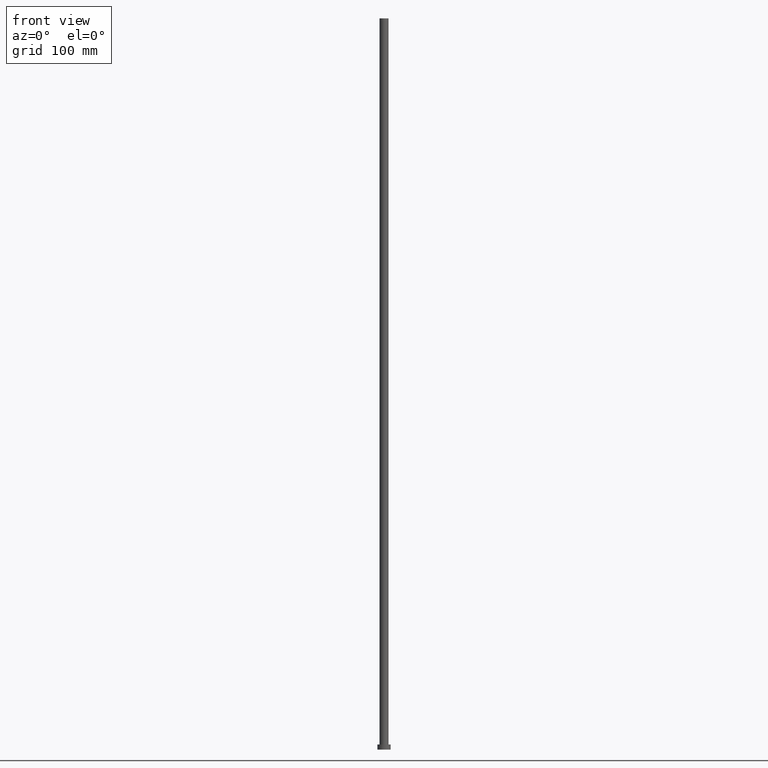
[diagram: clean part render]
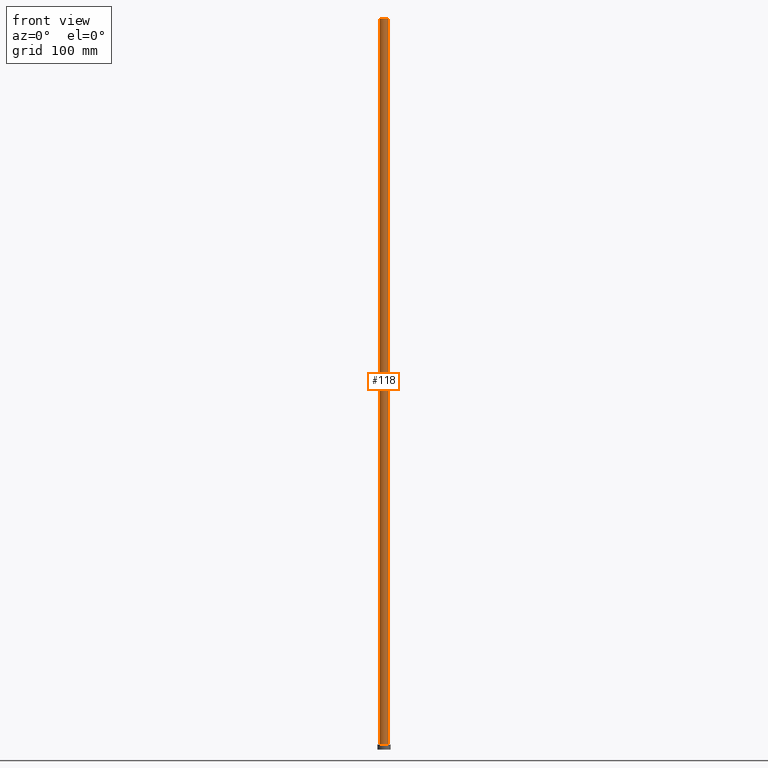
[diagram: same view with one face highlighted and labeled with its STEP entity id]
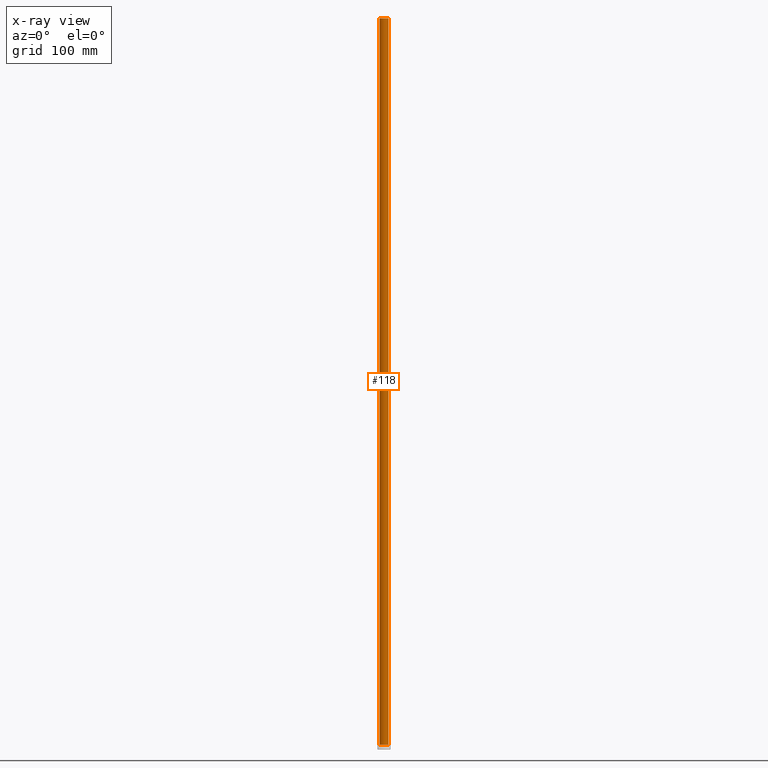
[diagram: x-ray of the same camera — body ghosted, the highlighted face saturated]
A machine part, front view. The second image highlights one B-rep face of the part: STEP entity #118.
The next image is the same camera in x-ray: the body ghosted, the highlighted face saturated — about 0% of this face is hidden behind the body in this view.
In plain terms, the highlighted cylindrical surface (edge-blend (fillet) strip) has radius 6.1 mm, axis along (-0, -0, -1).
Its self-contained STEP definition (entity closure, byte-faithful):
#26 = ORIENTED_EDGE ( 'NONE', *, *, #250, .F. ) ;
#36 = DIRECTION ( 'NONE',  ( 0.000000000000000000, 0.000000000000000000, 1.000000000000000000 ) ) ;
#37 = EDGE_CURVE ( 'NONE', #135, #216, #142, .T. ) ;
#41 = ORIENTED_EDGE ( 'NONE', *, *, #179, .T. ) ;
#53 = FACE_OUTER_BOUND ( 'NONE', #156, .T. ) ;
#56 = DIRECTION ( 'NONE',  ( -0.000000000000000000, -0.000000000000000000, -1.000000000000000000 ) ) ;
#57 = CARTESIAN_POINT ( 'NONE',  ( 6.099999999999999645, 7.470345474798854293E-16, 1000.000000000000000 ) ) ;
#58 = CARTESIAN_POINT ( 'NONE',  ( 6.099999999999999645, 7.470345474798854293E-16, 1000.000000000000000 ) ) ;
#76 = VECTOR ( 'NONE', #215, 1000.000000000000000 ) ;
#79 = CARTESIAN_POINT ( 'NONE',  ( -6.099999999999999645, 0.000000000000000000, 1000.000000000000000 ) ) ;
#80 = LINE ( 'NONE', #58, #76 ) ;
#99 = VECTOR ( 'NONE', #232, 1000.000000000000000 ) ;
#107 = CYLINDRICAL_SURFACE ( 'NONE', #240, 6.099999999999999645 ) ;
#113 = CARTESIAN_POINT ( 'NONE',  ( 0.000000000000000000, 0.000000000000000000, 1000.000000000000000 ) ) ;
#118 = ADVANCED_FACE ( 'NONE', ( #53 ), #107, .T. ) ;
#123 = CARTESIAN_POINT ( 'NONE',  ( 6.099999999999999645, 7.470345474798854293E-16, 7.000000000000000000 ) ) ;
#124 = DIRECTION ( 'NONE',  ( -1.000000000000000000, 0.000000000000000000, 0.000000000000000000 ) ) ;
#126 = CARTESIAN_POINT ( 'NONE',  ( -6.099999999999999645, 0.000000000000000000, 1000.000000000000000 ) ) ;
#129 = VERTEX_POINT ( 'NONE', #57 ) ;
#135 = VERTEX_POINT ( 'NONE', #126 ) ;
#142 = LINE ( 'NONE', #79, #99 ) ;
#145 = EDGE_CURVE ( 'NONE', #135, #129, #186, .T. ) ;
#153 = AXIS2_PLACEMENT_3D ( 'NONE', #161, #165, #229 ) ;
#156 = EDGE_LOOP ( 'NONE', ( #26, #241, #251, #41 ) ) ;
#161 = CARTESIAN_POINT ( 'NONE',  ( 0.000000000000000000, 0.000000000000000000, 7.000000000000000000 ) ) ;
#165 = DIRECTION ( 'NONE',  ( 0.000000000000000000, 0.000000000000000000, 1.000000000000000000 ) ) ;
#169 = DIRECTION ( 'NONE',  ( 1.000000000000000000, 0.000000000000000000, 0.000000000000000000 ) ) ;
#176 = VERTEX_POINT ( 'NONE', #123 ) ;
#178 = CIRCLE ( 'NONE', #153, 6.099999999999999645 ) ;
#179 = EDGE_CURVE ( 'NONE', #216, #176, #178, .T. ) ;
#186 = CIRCLE ( 'NONE', #226, 6.099999999999999645 ) ;
#189 = CARTESIAN_POINT ( 'NONE',  ( -6.099999999999999645, 0.000000000000000000, 7.000000000000000000 ) ) ;
#215 = DIRECTION ( 'NONE',  ( -0.000000000000000000, -0.000000000000000000, -1.000000000000000000 ) ) ;
#216 = VERTEX_POINT ( 'NONE', #189 ) ;
#226 = AXIS2_PLACEMENT_3D ( 'NONE', #113, #36, #169 ) ;
#229 = DIRECTION ( 'NONE',  ( 1.000000000000000000, 0.000000000000000000, 0.000000000000000000 ) ) ;
#232 = DIRECTION ( 'NONE',  ( -0.000000000000000000, -0.000000000000000000, -1.000000000000000000 ) ) ;
#240 = AXIS2_PLACEMENT_3D ( 'NONE', #254, #56, #124 ) ;
#241 = ORIENTED_EDGE ( 'NONE', *, *, #145, .F. ) ;
#250 = EDGE_CURVE ( 'NONE', #129, #176, #80, .T. ) ;
#251 = ORIENTED_EDGE ( 'NONE', *, *, #37, .T. ) ;
#254 = CARTESIAN_POINT ( 'NONE',  ( 0.000000000000000000, 0.000000000000000000, 1000.000000000000000 ) ) ;